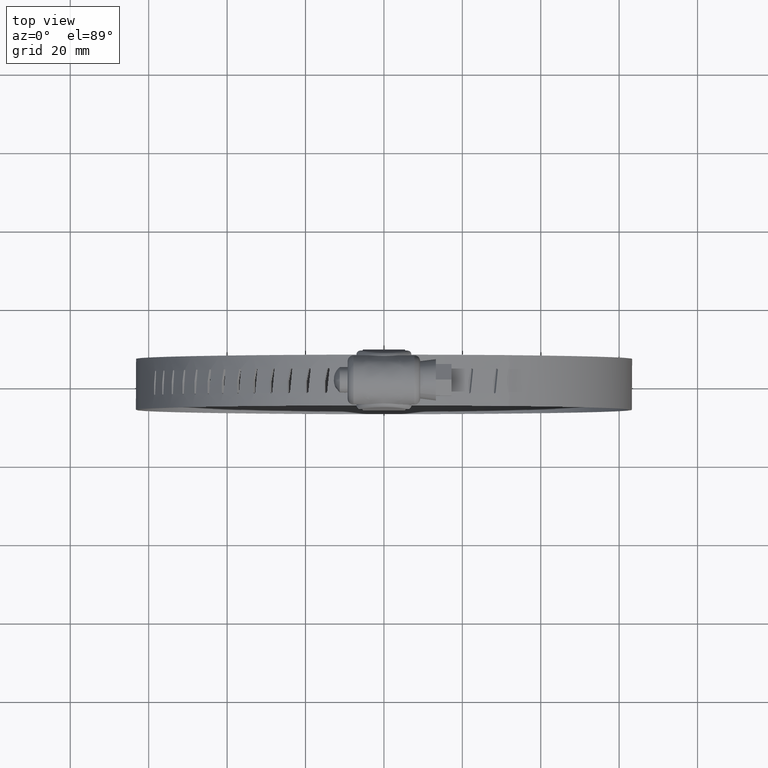
[diagram: clean part render]
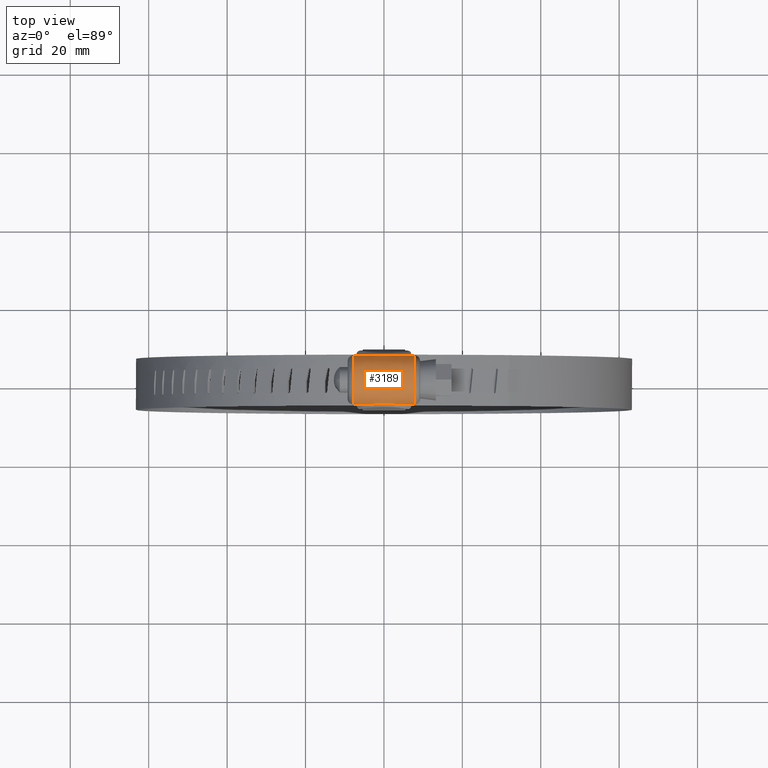
[diagram: same view with one face highlighted and labeled with its STEP entity id]
A machine part, top view. The second image highlights one B-rep face of the part: STEP entity #3189.
In plain terms, the highlighted face is a freeform B-spline surface patch.
Its self-contained STEP definition (entity closure, byte-faithful):
#1546=CARTESIAN_POINT('',(-3.766983245140355,-6.249999633170980,16.577121365332999));
#1547=VERTEX_POINT('',#1546);
#1657=CARTESIAN_POINT('',(3.766983245140355,-6.249999633170980,16.577121365332999));
#1658=VERTEX_POINT('',#1657);
#1666=CARTESIAN_POINT('',(-3.766983245140355,-6.249999633170980,16.577121365332999));
#1667=CARTESIAN_POINT('',(-3.478831496909463,-6.229233364205876,16.739128154655241));
#1668=CARTESIAN_POINT('',(-3.183300914378316,-6.204570008767342,16.882148632117168));
#1669=CARTESIAN_POINT('',(-2.576808892005547,-6.155228093785371,17.130036402120751));
#1670=CARTESIAN_POINT('',(-2.265836634976381,-6.130547265610534,17.234876518080021));
#1671=CARTESIAN_POINT('',(-1.866693869858923,-6.103751019367197,17.340919599546389));
#1672=CARTESIAN_POINT('',(-1.786486061357972,-6.098601892761600,17.360832235081901));
#1673=CARTESIAN_POINT('',(-1.626024433981459,-6.088846631766009,17.397907521513719));
#1674=CARTESIAN_POINT('',(-1.545665445436081,-6.084233341677489,17.415098594033861));
#1675=CARTESIAN_POINT('',(-1.304205280765513,-6.071283367227001,17.462673344400940));
#1676=CARTESIAN_POINT('',(-1.142721123573348,-6.063841070201703,17.489062200122419));
#1677=CARTESIAN_POINT('',(-0.656740159557208,-6.045693866015511,17.552452619586020));
#1678=CARTESIAN_POINT('',(-0.330719706065374,-6.039235105378521,17.573749912531952));
#1679=CARTESIAN_POINT('',(0.161419786626403,-6.039184386857341,17.573920279852860));
#1680=CARTESIAN_POINT('',(0.325985564198005,-6.040757096750824,17.568663909435760));
#1681=CARTESIAN_POINT('',(0.573631993009526,-6.045493593546023,17.552599085312352));
#1682=CARTESIAN_POINT('',(0.656241352251390,-6.047467871330164,17.545878086249040));
#1683=CARTESIAN_POINT('',(0.820475667525163,-6.052146371881373,17.529813216404978));
#1684=CARTESIAN_POINT('',(0.902253417529042,-6.054853191231874,17.520460500731989));
#1685=CARTESIAN_POINT('',(1.309472620170547,-6.070102513587345,17.467179843144940));
#1686=CARTESIAN_POINT('',(1.629917328613110,-6.087864840067938,17.403768142886481));
#1687=CARTESIAN_POINT('',(2.260627271324118,-6.130187882777850,17.236317853900928));
#1688=CARTESIAN_POINT('',(2.570888658853245,-6.154751397064583,17.132263968381999));
#1689=CARTESIAN_POINT('',(3.028839962946760,-6.192001216301294,16.945374784512900));
#1690=CARTESIAN_POINT('',(3.179777303179230,-6.204428908061730,16.878107182095970));
#1691=CARTESIAN_POINT('',(3.476686108309584,-6.228226204638982,16.734530296358798));
#1692=CARTESIAN_POINT('',(3.622917516897374,-6.239617229855899,16.658119055673680));
#1693=CARTESIAN_POINT('',(3.766983245140355,-6.249999633170980,16.577121365332999));
#1694=B_SPLINE_CURVE_WITH_KNOTS('',3,(#1666,#1667,#1668,#1669,#1670,#1671,#1672,#1673,#1674,#1675,#1676,#1677,#1678,#1679,#1680,#1681,#1682,#1683,#1684,#1685,#1686,#1687,#1688,#1689,#1690,#1691,#1692,#1693),.UNSPECIFIED.,.F.,.U.,(4,2,2,2,2,2,2,2,2,2,2,2,2,4),(0.000000039906754,0.125000000000001,0.250000000000001,0.281250000000001,0.312500000000001,0.375000000000001,0.500000000000001,0.562500000000001,0.593750000000001,0.625000000000000,0.750000000000000,0.875000000000000,0.937500000000000,0.999999982435041),.UNSPECIFIED.);
#1695=EDGE_CURVE('',#1547,#1658,#1694,.T.);
#1886=CARTESIAN_POINT('',(-3.767731017053410,6.249999633170980,16.577121365332999));
#1887=VERTEX_POINT('',#1886);
#1895=CARTESIAN_POINT('',(3.767731017053410,6.249999633170980,16.577121365332999));
#1896=VERTEX_POINT('',#1895);
#1897=CARTESIAN_POINT('',(3.767731017053410,6.249999633170980,16.577121365332999));
#1898=CARTESIAN_POINT('',(3.479497733507518,6.229237709105721,16.739094258291651));
#1899=CARTESIAN_POINT('',(3.183884050679524,6.204583222070062,16.882071151559519));
#1900=CARTESIAN_POINT('',(2.577243934754033,6.155257050299552,17.129902017543969));
#1901=CARTESIAN_POINT('',(2.266206147951572,6.130582696073145,17.234727400421061));
#1902=CARTESIAN_POINT('',(1.866991587071622,6.103790234875439,17.340766625409820));
#1903=CARTESIAN_POINT('',(1.786771470837745,6.098641773924828,17.360678763914390));
#1904=CARTESIAN_POINT('',(1.626284023453253,6.088887352445290,17.397754646818960));
#1905=CARTESIAN_POINT('',(1.545912167912042,6.084274283725710,17.414946625872581));
#1906=CARTESIAN_POINT('',(1.304413467685331,6.071324521135703,17.462525250646319));
#1907=CARTESIAN_POINT('',(1.142903704963588,6.063881763437935,17.488918202284239));
#1908=CARTESIAN_POINT('',(0.656845720759579,6.045732683460419,17.552320710697689));
#1909=CARTESIAN_POINT('',(0.330773580215899,6.039272260056391,17.573625094178219));
#1910=CARTESIAN_POINT('',(-0.161444854682112,6.039221514861135,17.573795563976041));
#1911=CARTESIAN_POINT('',(-0.326037165918512,6.040794574774885,17.568537633646770));
#1912=CARTESIAN_POINT('',(-0.573723678317318,6.045531948734165,17.552468569044731));
#1913=CARTESIAN_POINT('',(-0.656346915220894,6.047506583847865,17.545745815254921));
#1914=CARTESIAN_POINT('',(-0.820608736505639,6.052185828560140,17.529677062264259));
#1915=CARTESIAN_POINT('',(-0.902400225254582,6.054893035526168,17.520322214310770));
#1916=CARTESIAN_POINT('',(-1.309688241338812,6.070144131077192,17.467030690373669));
#1917=CARTESIAN_POINT('',(-1.630188360697988,6.087907219618561,17.403609516303838));
#1918=CARTESIAN_POINT('',(-2.261015828429809,6.130224851233542,17.236162525183840));
#1919=CARTESIAN_POINT('',(-2.571339628588592,6.154781890041164,17.132122576332680));
#1920=CARTESIAN_POINT('',(-3.029391561703454,6.192018955972971,16.945279975485011));
#1921=CARTESIAN_POINT('',(-3.180366883374803,6.204442304778198,16.878030458831791));
#1922=CARTESIAN_POINT('',(-3.477353567144340,6.228231820699066,16.734492306269210));
#1923=CARTESIAN_POINT('',(-3.623625442391634,6.239619468304403,16.658101592606808));
#1924=CARTESIAN_POINT('',(-3.767731017053410,6.249999633170980,16.577121365332999));
#1925=B_SPLINE_CURVE_WITH_KNOTS('',3,(#1897,#1898,#1899,#1900,#1901,#1902,#1903,#1904,#1905,#1906,#1907,#1908,#1909,#1910,#1911,#1912,#1913,#1914,#1915,#1916,#1917,#1918,#1919,#1920,#1921,#1922,#1923,#1924),.UNSPECIFIED.,.F.,.U.,(4,2,2,2,2,2,2,2,2,2,2,2,2,4),(0.000000039879375,0.125000000000000,0.250000000000001,0.281250000000000,0.312500000000000,0.375000000000000,0.500000000000000,0.562500000000000,0.593749999999999,0.624999999999999,0.749999999999999,0.875000000000000,0.937500000000000,0.999999982445228),.UNSPECIFIED.);
#1926=EDGE_CURVE('',#1896,#1887,#1925,.T.);
#2423=CARTESIAN_POINT('',(7.750000000000000,6.249999633170980,16.577121365332999));
#2424=VERTEX_POINT('',#2423);
#2480=CARTESIAN_POINT('',(7.750000000000000,-6.249999633170980,16.577121365332999));
#2481=VERTEX_POINT('',#2480);
#2513=CARTESIAN_POINT('',(7.750000000000000,-6.249999633170980,16.577121365332999));
#2514=CARTESIAN_POINT('',(7.750000000000004,-6.177893934223886,17.140914319569390));
#2515=CARTESIAN_POINT('',(7.749999999999991,-5.867299165823082,18.294899021065419));
#2516=CARTESIAN_POINT('',(7.749999999999989,-4.949508612781753,19.810136232196172));
#2517=CARTESIAN_POINT('',(7.750000000000009,-3.788903261301072,20.878580539002112));
#2518=CARTESIAN_POINT('',(7.749999999999977,-2.590962148125825,21.562274292863979));
#2519=CARTESIAN_POINT('',(7.749999999999973,-1.463743170941570,21.944585354838988));
#2520=CARTESIAN_POINT('',(7.749999999999991,-0.191376821033216,22.117803836810840));
#2521=CARTESIAN_POINT('',(7.749999999999996,1.282983210019027,22.018110503561950));
#2522=CARTESIAN_POINT('',(7.749999999999981,2.960696049801740,21.449330267796480));
#2523=CARTESIAN_POINT('',(7.750000000000000,4.509180183657394,20.316720920646489));
#2524=CARTESIAN_POINT('',(7.750000000000046,5.730241591884317,18.659138445550958));
#2525=CARTESIAN_POINT('',(7.749999999999975,6.154203543414919,17.328944606958778));
#2526=CARTESIAN_POINT('',(7.750000000000000,6.249999633170980,16.577121365332999));
#2527=B_SPLINE_CURVE_WITH_KNOTS('',3,(#2513,#2514,#2515,#2516,#2517,#2518,#2519,#2520,#2521,#2522,#2523,#2524,#2525,#2526),.UNSPECIFIED.,.F.,.U.,(4,1,1,1,1,1,1,1,1,1,1,4),(0.000000445046247,1.705162484425166,3.552579193389578,5.257895288386013,6.394730991384657,7.673714506656330,8.810526350957119,10.231487545494350,12.078821472278401,14.068358246736629,15.915749510865210,18.189366711733118),.UNSPECIFIED.);
#2528=EDGE_CURVE('',#2481,#2424,#2527,.T.);
#2613=CARTESIAN_POINT('',(-7.749999999999810,6.249999633170980,16.577121365332999));
#2614=VERTEX_POINT('',#2613);
#2670=CARTESIAN_POINT('',(-7.750000000000000,-6.249999633170980,16.577121365332999));
#2671=VERTEX_POINT('',#2670);
#2682=CARTESIAN_POINT('',(-7.749999999999810,6.249999633170980,16.577121365332999));
#2683=CARTESIAN_POINT('',(-7.749999999999815,6.177890345615658,17.140907354196710));
#2684=CARTESIAN_POINT('',(-7.749999999999855,5.867318637571947,18.294934100492060));
#2685=CARTESIAN_POINT('',(-7.749999999999872,4.999051775427630,19.728124026680590));
#2686=CARTESIAN_POINT('',(-7.749999999999935,3.728805976647226,20.951951313940860));
#2687=CARTESIAN_POINT('',(-7.749999999999949,2.168307304337920,21.796889372283800));
#2688=CARTESIAN_POINT('',(-7.749999999999989,0.523227796355670,22.115808251253139));
#2689=CARTESIAN_POINT('',(-7.749999999999980,-1.092253867011147,22.042926129168301));
#2690=CARTESIAN_POINT('',(-7.750000000000052,-2.425793244402918,21.656762166026549));
#2691=CARTESIAN_POINT('',(-7.750000000000019,-3.706232240587119,20.925645141115272));
#2692=CARTESIAN_POINT('',(-7.750000000000050,-4.744101578227923,20.012468593129238));
#2693=CARTESIAN_POINT('',(-7.750000000000014,-5.759392203572852,18.567274192421461));
#2694=CARTESIAN_POINT('',(-7.750000000000019,-6.154203419752044,17.328986196811929));
#2695=CARTESIAN_POINT('',(-7.750000000000000,-6.249999633170980,16.577121365332999));
#2696=B_SPLINE_CURVE_WITH_KNOTS('',3,(#2682,#2683,#2684,#2685,#2686,#2687,#2688,#2689,#2690,#2691,#2692,#2693,#2694,#2695),.UNSPECIFIED.,.F.,.U.,(4,1,1,1,1,1,1,1,1,1,1,4),(0.000000445045824,1.705162484424921,3.552579193389514,4.973672758048519,6.963149322516054,8.810526350957320,9.947267433899961,11.794601570677930,12.931502415714441,14.352575458176810,15.915749510865250,18.189366711733118),.UNSPECIFIED.);
#2697=EDGE_CURVE('',#2614,#2671,#2696,.T.);
#3121=CARTESIAN_POINT('',(7.750000000000000,-6.249999633170980,16.577121365332999));
#3122=CARTESIAN_POINT('',(3.766983245140355,-6.249999633170980,16.577121365332999));
#3123=QUASI_UNIFORM_CURVE('',1,(#3121,#3122),.UNSPECIFIED.,.F.,.U.);
#3124=EDGE_CURVE('',#2481,#1658,#3123,.T.);
#3143=CARTESIAN_POINT('',(-3.766983245140355,-6.249999633170980,16.577121365332999));
#3144=CARTESIAN_POINT('',(-7.750000000000000,-6.249999633170980,16.577121365332999));
#3145=QUASI_UNIFORM_CURVE('',1,(#3143,#3144),.UNSPECIFIED.,.F.,.U.);
#3146=EDGE_CURVE('',#1547,#2671,#3145,.T.);
#3153=CARTESIAN_POINT('',(8.137500000000001,6.256752797267127,16.522550016851341));
#3154=CARTESIAN_POINT('',(-8.147187500000037,6.256752797267127,16.522550016851341));
#3155=CARTESIAN_POINT('',(8.137500000000001,5.578620881440008,22.205784116358405));
#3156=CARTESIAN_POINT('',(-8.147187500000037,5.578620881440008,22.205784116358405));
#3157=CARTESIAN_POINT('',(8.137500000000001,-0.143444799420466,22.075488034368480));
#3158=CARTESIAN_POINT('',(-8.147187500000037,-0.143444799420466,22.075488034368480));
#3159=CARTESIAN_POINT('',(8.137500000000001,-5.865510480280938,21.945191952378561));
#3160=CARTESIAN_POINT('',(-8.147187500000037,-5.865510480280938,21.945191952378561));
#3161=CARTESIAN_POINT('',(8.137500000000001,-6.284249946758260,16.236981200813990));
#3162=CARTESIAN_POINT('',(-8.147187500000037,-6.284249946758260,16.236981200813990));
#3170=(BOUNDED_SURFACE()B_SPLINE_SURFACE(1,2,((#3153,#3155,#3157,#3159,#3161),(#3154,#3156,#3158,#3160,#3162)),.UNSPECIFIED.,.F.,.F.,.U.)B_SPLINE_SURFACE_WITH_KNOTS((2,2),(3,2,3),(0.0,16.284687500000040),(0.0,9.738261264178698,19.476522528357400),.UNSPECIFIED.)GEOMETRIC_REPRESENTATION_ITEM()RATIONAL_B_SPLINE_SURFACE(((1.0,0.740218127486832,1.0,0.740218127486832,1.0),(1.0,0.740218127486832,1.0,0.740218127486832,1.0)))REPRESENTATION_ITEM('')SURFACE());
#3171=CARTESIAN_POINT('',(7.750000000000000,6.249999633170980,16.577121365332999));
#3172=CARTESIAN_POINT('',(3.767731017053410,6.249999633170980,16.577121365332999));
#3173=QUASI_UNIFORM_CURVE('',1,(#3171,#3172),.UNSPECIFIED.,.F.,.U.);
#3174=EDGE_CURVE('',#2424,#1896,#3173,.T.);
#3175=ORIENTED_EDGE('',*,*,#3174,.T.);
#3176=ORIENTED_EDGE('',*,*,#1926,.T.);
#3177=CARTESIAN_POINT('',(-3.767731017053410,6.249999633170980,16.577121365332999));
#3178=CARTESIAN_POINT('',(-7.749999999999810,6.249999633170980,16.577121365332999));
#3179=QUASI_UNIFORM_CURVE('',1,(#3177,#3178),.UNSPECIFIED.,.F.,.U.);
#3180=EDGE_CURVE('',#1887,#2614,#3179,.T.);
#3181=ORIENTED_EDGE('',*,*,#3180,.T.);
#3182=ORIENTED_EDGE('',*,*,#2697,.T.);
#3183=ORIENTED_EDGE('',*,*,#3146,.F.);
#3184=ORIENTED_EDGE('',*,*,#1695,.T.);
#3185=ORIENTED_EDGE('',*,*,#3124,.F.);
#3186=ORIENTED_EDGE('',*,*,#2528,.T.);
#3187=EDGE_LOOP('',(#3175,#3176,#3181,#3182,#3183,#3184,#3185,#3186));
#3188=FACE_OUTER_BOUND('',#3187,.T.);
#3189=ADVANCED_FACE('',(#3188),#3170,.T.);